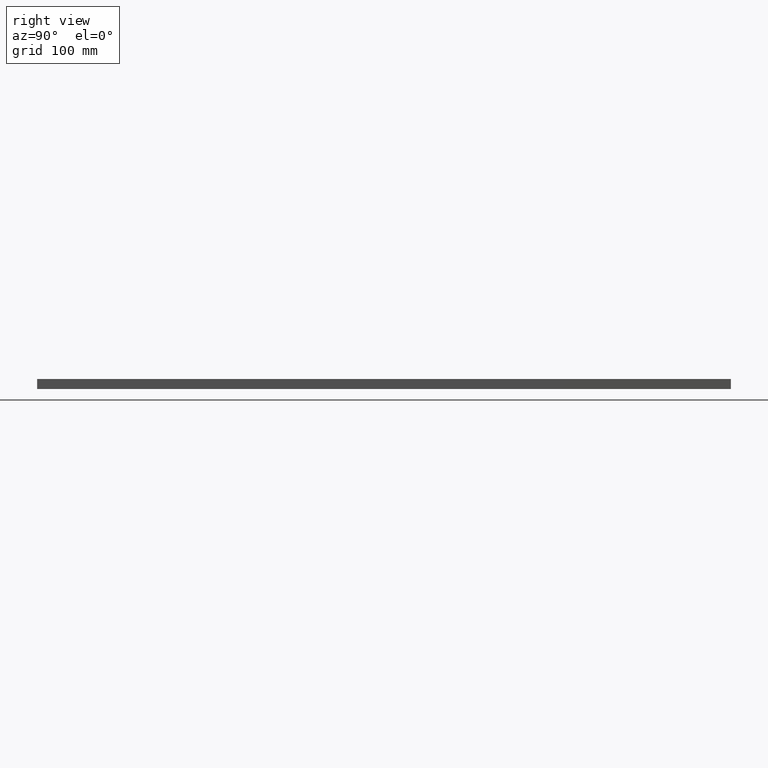
[diagram: clean part render]
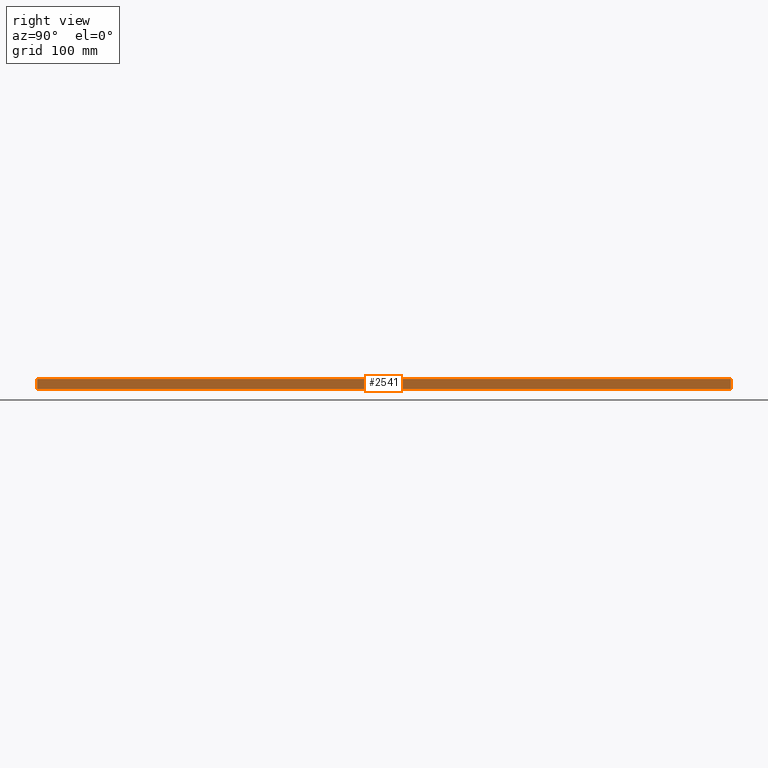
[diagram: same view with one face highlighted and labeled with its STEP entity id]
A machine part, right view. The second image highlights one B-rep face of the part: STEP entity #2541.
In plain terms, the highlighted planar face has unit normal (-1, -0, 0).
Its self-contained STEP definition (entity closure, byte-faithful):
#548 = EDGE_CURVE ( 'NONE', #4935, #11111, #3569, .T. ) ;
#2023 = EDGE_CURVE ( 'NONE', #4935, #4664, #13896, .T. ) ;
#2541 = ADVANCED_FACE ( 'NONE', ( #8688 ), #9258, .F. ) ;
#2875 = CARTESIAN_POINT ( 'NONE',  ( 149.9999999999999400, 450.0000000000000000, 13.00000000000000000 ) ) ;
#3569 = LINE ( 'NONE', #24802, #13322 ) ;
#4358 = EDGE_CURVE ( 'NONE', #4664, #15226, #12601, .T. ) ;
#4664 = VERTEX_POINT ( 'NONE', #25147 ) ;
#4714 = CARTESIAN_POINT ( 'NONE',  ( 150.0000000000000600, -450.0000000000000000, 13.00000000000000000 ) ) ;
#4795 = ORIENTED_EDGE ( 'NONE', *, *, #548, .F. ) ;
#4935 = VERTEX_POINT ( 'NONE', #24117 ) ;
#7132 = EDGE_CURVE ( 'NONE', #11111, #15226, #24411, .T. ) ;
#8086 = VECTOR ( 'NONE', #16371, 1000.000000000000000 ) ;
#8382 = DIRECTION ( 'NONE',  ( -0.0000000000000000000, -0.0000000000000000000, -1.000000000000000000 ) ) ;
#8573 = CARTESIAN_POINT ( 'NONE',  ( 149.9999999999999400, 450.0000000000000000, 0.0000000000000000000 ) ) ;
#8688 = FACE_OUTER_BOUND ( 'NONE', #15979, .T. ) ;
#9258 = PLANE ( 'NONE',  #19981 ) ;
#10462 = VECTOR ( 'NONE', #16342, 1000.000000000000000 ) ;
#11111 = VERTEX_POINT ( 'NONE', #2875 ) ;
#11229 = DIRECTION ( 'NONE',  ( -1.000000000000000000, -1.233581138472396200E-016, 0.0000000000000000000 ) ) ;
#12601 = LINE ( 'NONE', #8573, #10462 ) ;
#13322 = VECTOR ( 'NONE', #20848, 1000.000000000000000 ) ;
#13896 = LINE ( 'NONE', #4714, #8086 ) ;
#15226 = VERTEX_POINT ( 'NONE', #23460 ) ;
#15979 = EDGE_LOOP ( 'NONE', ( #16636, #23710, #4795, #16167 ) ) ;
#16167 = ORIENTED_EDGE ( 'NONE', *, *, #2023, .T. ) ;
#16342 = DIRECTION ( 'NONE',  ( -1.233581138472396200E-016, 1.000000000000000000, -0.0000000000000000000 ) ) ;
#16371 = DIRECTION ( 'NONE',  ( -0.0000000000000000000, -0.0000000000000000000, -1.000000000000000000 ) ) ;
#16636 = ORIENTED_EDGE ( 'NONE', *, *, #4358, .T. ) ;
#17039 = CARTESIAN_POINT ( 'NONE',  ( 149.9999999999999400, 450.0000000000000000, 13.00000000000000000 ) ) ;
#19981 = AXIS2_PLACEMENT_3D ( 'NONE', #17039, #11229, #24938 ) ;
#20084 = CARTESIAN_POINT ( 'NONE',  ( 149.9999999999999400, 450.0000000000000000, 13.00000000000000000 ) ) ;
#20848 = DIRECTION ( 'NONE',  ( -1.233581138472396200E-016, 1.000000000000000000, -0.0000000000000000000 ) ) ;
#22556 = VECTOR ( 'NONE', #8382, 1000.000000000000000 ) ;
#23460 = CARTESIAN_POINT ( 'NONE',  ( 149.9999999999999400, 450.0000000000000000, 0.0000000000000000000 ) ) ;
#23710 = ORIENTED_EDGE ( 'NONE', *, *, #7132, .F. ) ;
#24117 = CARTESIAN_POINT ( 'NONE',  ( 150.0000000000000600, -450.0000000000000000, 13.00000000000000000 ) ) ;
#24411 = LINE ( 'NONE', #20084, #22556 ) ;
#24802 = CARTESIAN_POINT ( 'NONE',  ( 149.9999999999999400, 450.0000000000000000, 13.00000000000000000 ) ) ;
#24938 = DIRECTION ( 'NONE',  ( 1.233581138472396200E-016, -1.000000000000000000, 0.0000000000000000000 ) ) ;
#25147 = CARTESIAN_POINT ( 'NONE',  ( 150.0000000000000600, -450.0000000000000000, 0.0000000000000000000 ) ) ;